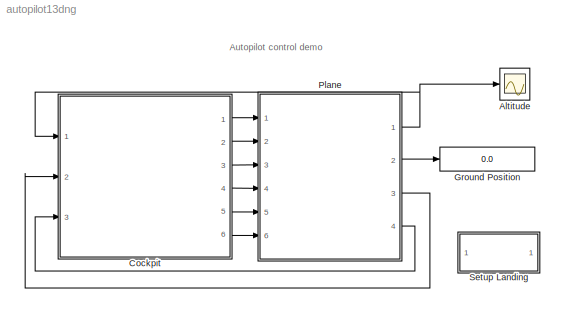
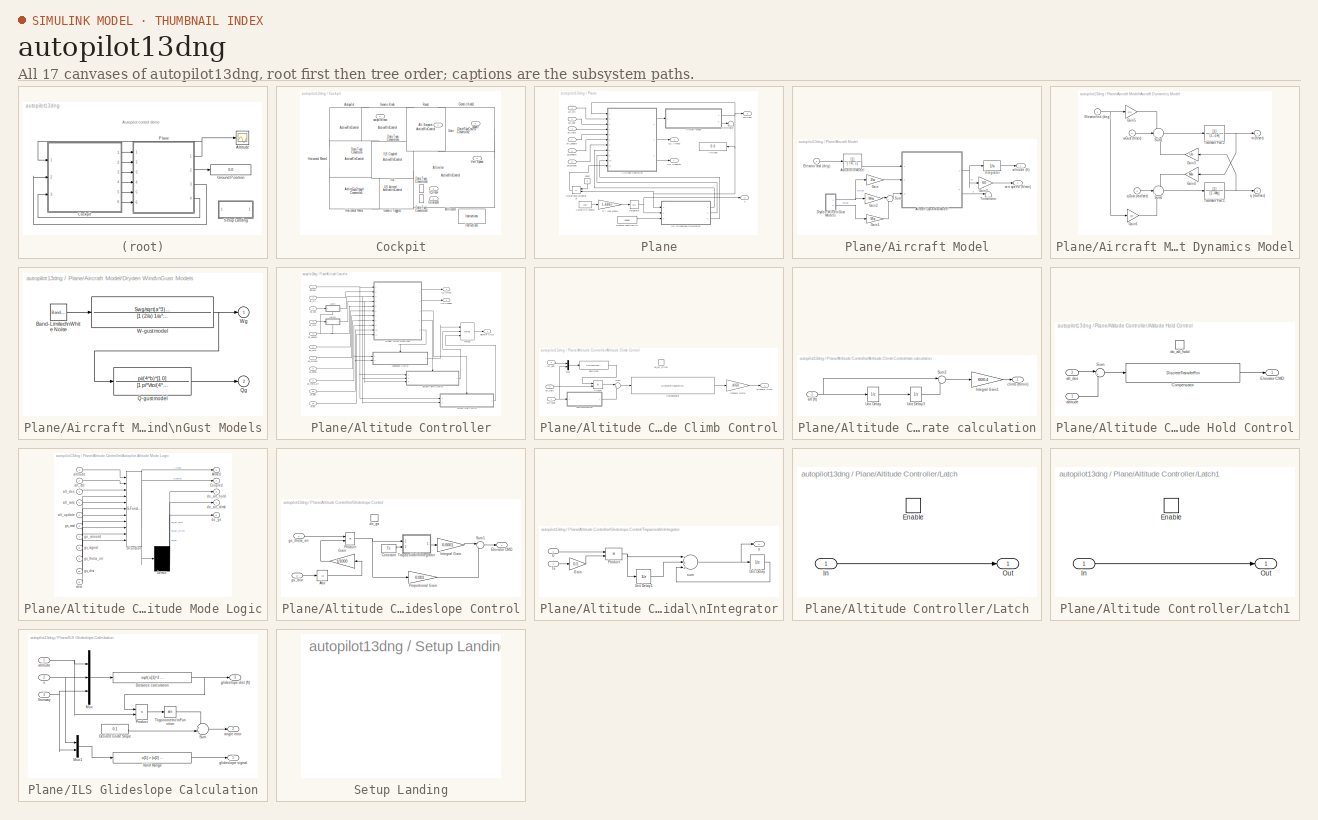
[diagram: thumbnail index - all 17 canvases of the model, root first then tree order]
MODEL autopilot13dng
KIND model
CONFIG AbsTol = auto
CONFIG FixedStep = .1
CONFIG MaxStep = auto
CONFIG MinStep = auto
CONFIG PreLoadFcn = load autopilot_data.mat;
CONFIG RelTol = 1e-3
CONFIG Solver = ode3
CONFIG SolverMode = SingleTasking
CONFIG StartTime = 0.0
CONFIG StopTime = 150
BLOCK [Scope] Altitude
  DataFormat = StructureWithTime
  NumInputPorts = 1
  Ports = [1]
  TickLabels = on
  TimeRange = 150
  YMax = 1500
  YMin = -100
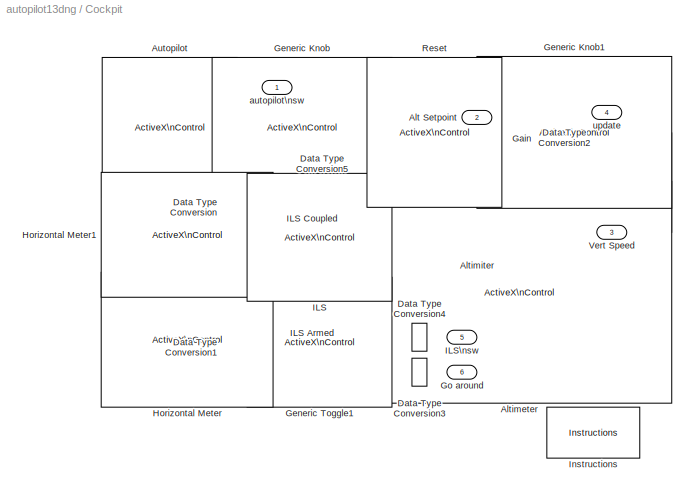
BLOCK [SubSystem] Cockpit
  Ports = [3, 6]
  TreatAsAtomicUnit = off
BLOCK [Outport] Cockpit/Alt Setpoint
  Port = 2
BLOCK [Reference] Cockpit/Altimeter  REF=dnglibv1/ActiveX\nControl
  Ports = [1]
  SourceBlock = dnglibv1/ActiveX\nControl
  SourceType = ActiveX Block
  border = on
  connect = input
  dialOut = 0
  inblock = on
  init = hActx.displaymode=2;hActx.altthousandstyle=1;
  input = altitude
  progid = air.airctrl.1
  updateParam = 0
BLOCK [Inport] Cockpit/Altimiter
BLOCK [Reference] Cockpit/Autopilot  REF=dnglibv1/ActiveX\nControl
  Ports = [0, 1]
  SourceBlock = dnglibv1/ActiveX\nControl
  SourceType = ActiveX Block
  border = on
  connect = output
  dialOut = 1
  dialOutEvent = Click
  inblock = on
  init = hActx.configuration='Toggle Switch\\Bitmap Toggles\\OnOff Switch';
  output = Value
  progid = mwtoggle.togglectrl.1
  updateParam = 0
BLOCK [DataTypeConversion] Cockpit/Data Type Conversion
BLOCK [DataTypeConversion] Cockpit/Data Type Conversion1
BLOCK [DataTypeConversion] Cockpit/Data Type Conversion2
  DataType = boolean
BLOCK [DataTypeConversion] Cockpit/Data Type Conversion3
  DataType = boolean
BLOCK [DataTypeConversion] Cockpit/Data Type Conversion4
  DataType = boolean
BLOCK [DataTypeConversion] Cockpit/Data Type Conversion5
  DataType = boolean
BLOCK [Gain] Cockpit/Gain
  Gain = -1
BLOCK [Reference] Cockpit/Generic Knob  REF=dnglibv1/ActiveX\nControl
  Ports = [0, 1]
  SourceBlock = dnglibv1/ActiveX\nControl
  SourceType = ActiveX Block
  border = on
  connect = output
  dialOut = 12000
  dialOutEvent = Turn Click
  inblock = on
  init = hActx.MouseControl=2;
  output = KnobValue
  progid = mwknob.knobctrl.1
  updateParam = 0
BLOCK [Reference] Cockpit/Generic Knob1  REF=dnglibv1/ActiveX\nControl
  Ports = [0, 1]
  SourceBlock = dnglibv1/ActiveX\nControl
  SourceType = ActiveX Block
  border = on
  connect = output
  dialOut = 750
  dialOutEvent = Turn Click
  inblock = on
  init = hActx.MouseControl=2;
  output = KnobValue
  progid = mwknob.knobctrl.1
  updateParam = 0
BLOCK [Reference] Cockpit/Generic Toggle1  REF=dnglibv1/ActiveX\nControl
  Ports = [0, 1]
  SourceBlock = dnglibv1/ActiveX\nControl
  SourceType = ActiveX Block
  border = on
  connect = output
  dialOut = 0
  dialOutEvent = Click
  inblock = on
  output = Value
  progid = mwtoggle.togglectrl.1
  updateParam = 0
BLOCK [Outport] Cockpit/Go around
  Port = 6
BLOCK [Reference] Cockpit/Horizontal Meter  REF=dnglibv1/ActiveX\nControl
  Ports = [1]
  SourceBlock = dnglibv1/ActiveX\nControl
  SourceType = ActiveX Block
  border = on
  connect = input
  dialOut = 0
  inblock = on
  init = hActx.configuration='LED<path> Horizontal Bitmaps';hActx.Mode=0;hActx.value=0;hActx.Mode=0;hActx.MouseControl=0;
  input = Value
  progid = MWLED.ledctrl.1
  updateParam = 0
BLOCK [Reference] Cockpit/Horizontal Meter1  REF=dnglibv1/ActiveX\nControl
  Ports = [1]
  SourceBlock = dnglibv1/ActiveX\nControl
  SourceType = ActiveX Block
  border = on
  connect = input
  dialOut = 0
  inblock = on
  init = hActx.configuration='LED<path> Horizontal Bitmaps';hActx.Mode=0;hActx.value=0;hActx.Mode=0;hActx.MouseControl=0;
  input = Value
  progid = MWLED.ledctrl.1
  updateParam = 0
BLOCK [Reference] Cockpit/ILS  REF=dnglibv1/ActiveX\nControl
  Ports = [0, 1]
  SourceBlock = dnglibv1/ActiveX\nControl
  SourceType = ActiveX Block
  border = on
  connect = output
  dialOut = 1
  dialOutEvent = Click
  inblock = on
  init = hActx.configuration='Toggle Switch\\Bitmap Toggles\\OnOff Switch';
  output = Value
  progid = mwtoggle.togglectrl.1
  updateParam = 0
BLOCK [Inport] Cockpit/ILS Armed
  Port = 2
BLOCK [Inport] Cockpit/ILS Coupled
  Port = 3
BLOCK [Outport] Cockpit/ILS\nsw
  Port = 5
BLOCK [Reference] Cockpit/Instructions  REF=autopilot_plane/Instructions  (lib defined in mdl_b56bc6afc28f)
  Ports = []
  SourceBlock = autopilot_plane/Instructions
BLOCK [Reference] Cockpit/Reset  REF=dnglibv1/ActiveX\nControl
  Ports = [0, 1]
  SourceBlock = dnglibv1/ActiveX\nControl
  SourceType = ActiveX Block
  border = on
  connect = output
  dialOut = 0
  dialOutEvent = Click
  inblock = on
  output = Value
  progid = mwtoggle.togglectrl.1
  updateParam = 0
BLOCK [Outport] Cockpit/Vert Speed
  Port = 3
BLOCK [Outport] Cockpit/autopilot\nsw
BLOCK [Outport] Cockpit/update
  Port = 4
BLOCK [Display] Ground Position
  Decimation = 1
  Ports = [1]
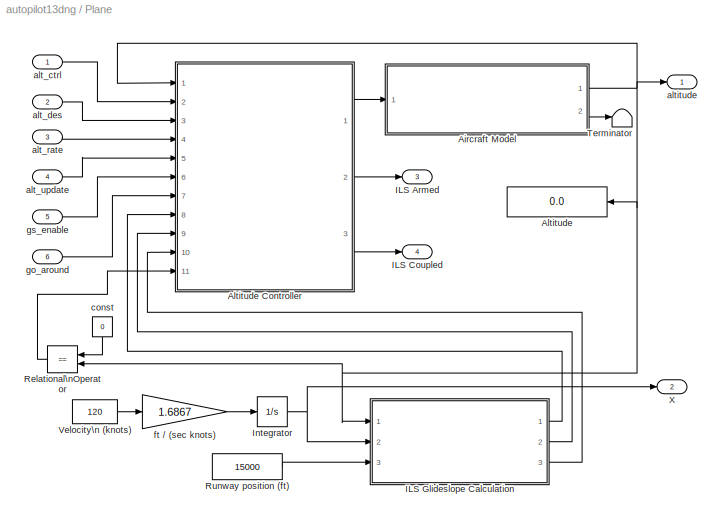
BLOCK [SubSystem] Plane
  AncestorBlock = autopilot_plane/Plane
  Ports = [6, 4]
  TreatAsAtomicUnit = off
BLOCK [SubSystem] Plane/Aircraft Model
  Ports = [1, 2]
  TreatAsAtomicUnit = off
BLOCK [TransferFcn] Plane/Aircraft Model/Actuator\nModel
  Denominator = [ Ta, 1]
BLOCK [SubSystem] Plane/Aircraft Model/Aircraft Dynamics Model
  Ports = [3, 2]
  TreatAsAtomicUnit = off
BLOCK [Inport] Plane/Aircraft Model/Aircraft Dynamics Model/Elevator\nd (deg)
BLOCK [Gain] Plane/Aircraft Model/Aircraft Dynamics Model/Gain3
  Gain = Uo
BLOCK [Gain] Plane/Aircraft Model/Aircraft Dynamics Model/Gain4
  Gain = Mw
BLOCK [Gain] Plane/Aircraft Model/Aircraft Dynamics Model/Gain5
  Gain = Zd
BLOCK [Gain] Plane/Aircraft Model/Aircraft Dynamics Model/Gain6
  Gain = Md
BLOCK [Sum] Plane/Aircraft Model/Aircraft Dynamics Model/Sum1
  IconShape = round
  Inputs = +-+
  Ports = [3, 1]
BLOCK [Sum] Plane/Aircraft Model/Aircraft Dynamics Model/Sum2
  IconShape = round
  Inputs = +-+
  Ports = [3, 1]
BLOCK [TransferFcn] Plane/Aircraft Model/Aircraft Dynamics Model/Transfer Fcn.1
  Denominator = [1,-Mq]
BLOCK [TransferFcn] Plane/Aircraft Model/Aircraft Dynamics Model/Transfer Fcn.2
  Denominator = [1,-Zw]
BLOCK [Outport] Plane/Aircraft Model/Aircraft Dynamics Model/q (rad//sec)
  InitialOutput = 0
  Port = 2
BLOCK [Inport] Plane/Aircraft Model/Aircraft Dynamics Model/qGust (rad//sec)
  Port = 3
BLOCK [Outport] Plane/Aircraft Model/Aircraft Dynamics Model/w (ft//sec)
  InitialOutput = 0
BLOCK [Inport] Plane/Aircraft Model/Aircraft Dynamics Model/wGust (ft//sec)
  Port = 2
BLOCK [SubSystem] Plane/Aircraft Model/Dryden Wind\nGust Models
  Ports = [0, 2]
  TreatAsAtomicUnit = off
BLOCK [Reference] Plane/Aircraft Model/Dryden Wind\nGust Models/Band-Limited\nWhite Noise  REF=simulink/Sources/Band-Limited\nWhite Noise
  Cov = 1
  Ports = [0, 1]
  SourceBlock = simulink/Sources/Band-Limited\nWhite Noise
  SourceType = Continuous White Noise.
  Ts = 0.2
  VectorParams1D = on
  seed = [23341]
BLOCK [TransferFcn] Plane/Aircraft Model/Dryden Wind\nGust Models/Q-gust model
  Denominator = [1 pi*Vto/(4*b)]
  Numerator = pi/(4*b)*[1 0]
BLOCK [Outport] Plane/Aircraft Model/Dryden Wind\nGust Models/Qg
  InitialOutput = 0
  Port = 2
BLOCK [TransferFcn] Plane/Aircraft Model/Dryden Wind\nGust Models/W-gust model
  Denominator = [1 (2/a) 1/a^2]
  Numerator = Swg/sqrt(a^3)*[sqrt(3)*a,1]
BLOCK [Outport] Plane/Aircraft Model/Dryden Wind\nGust Models/Wg
  InitialOutput = 0
BLOCK [Inport] Plane/Aircraft Model/Elevator cmd (deg)
BLOCK [Gain] Plane/Aircraft Model/Gain
  Gain = Zw
BLOCK [Gain] Plane/Aircraft Model/Gain1
  Gain = Mq
BLOCK [Gain] Plane/Aircraft Model/Gain2
  Gain = Mw
BLOCK [Gain] Plane/Aircraft Model/Gain3
  Gain = 60
BLOCK [Integrator] Plane/Aircraft Model/Integrator
  InitialCondition = alt_ic
  LimitOutput = on
  LowerSaturationLimit = 0
  Ports = [1, 1]
BLOCK [Sum] Plane/Aircraft Model/Sum
  IconShape = round
  Inputs = |++
  Ports = [2, 1]
BLOCK [Terminator] Plane/Aircraft Model/Terminator
BLOCK [Outport] Plane/Aircraft Model/altitude (ft)
BLOCK [Outport] Plane/Aircraft Model/vert speed (ft//min)
  Port = 2
BLOCK [Display] Plane/Altitude
  Decimation = 1
  Ports = [1]
BLOCK [SubSystem] Plane/Altitude Controller
  Ports = [11, 3]
  TreatAsAtomicUnit = off
BLOCK [SubSystem] Plane/Altitude Controller/Altitude Climb Control
  Ports = [3, 1, 0, 1]
  TreatAsAtomicUnit = on
BLOCK [DiscreteTransferFcn] Plane/Altitude Controller/Altitude Climb Control/Compensator
  Denominator = [1 -0.4855  -0.4181 -0.08965  -0.006702]
  Numerator = [-0.003849   0.007402  -0.003561 -2.681e-006]
  SampleTime = -1
BLOCK [Outport] Plane/Altitude Controller/Altitude Climb Control/Elevator CMD
BLOCK [Gain] Plane/Altitude Controller/Altitude Climb Control/Integral Gain1
  Gain = .4/60
BLOCK [Mux] Plane/Altitude Controller/Altitude Climb Control/Mux
  DisplayOption = bar
  Inputs = 2
  Ports = [2, 1]
BLOCK [Product] Plane/Altitude Controller/Altitude Climb Control/Product
  Ports = [2, 1]
BLOCK [Sum] Plane/Altitude Controller/Altitude Climb Control/Sum
  IconShape = round
  Inputs = |+-
  Ports = [2, 1]
BLOCK [Inport] Plane/Altitude Controller/Altitude Climb Control/alt_des
  Port = 2
BLOCK [Inport] Plane/Altitude Controller/Altitude Climb Control/alt_rate
  Port = 3
BLOCK [Inport] Plane/Altitude Controller/Altitude Climb Control/altitude
BLOCK [TriggerPort] Plane/Altitude Controller/Altitude Climb Control/do_alt_climb
  Ports = []
  TriggerType = function-call
BLOCK [Fcn] Plane/Altitude Controller/Altitude Climb Control/gain sign
  Expr = 1-2*(u[2]>u[1])
BLOCK [SubSystem] Plane/Altitude Controller/Altitude Climb Control/rate calculation
  Ports = [1, 1]
  TreatAsAtomicUnit = off
BLOCK [Gain] Plane/Altitude Controller/Altitude Climb Control/rate calculation/Integral Gain1
  Gain = 60/0.4
BLOCK [Sum] Plane/Altitude Controller/Altitude Climb Control/rate calculation/Sum2
  IconShape = round
  Inputs = |+-
  Ports = [2, 1]
BLOCK [UnitDelay] Plane/Altitude Controller/Altitude Climb Control/rate calculation/Unit Delay
  SampleTime = -1
  X0 = 10000
BLOCK [UnitDelay] Plane/Altitude Controller/Altitude Climb Control/rate calculation/Unit Delay3
  SampleTime = -1
  X0 = 10000
BLOCK [Inport] Plane/Altitude Controller/Altitude Climb Control/rate calculation/alt (ft)
BLOCK [Outport] Plane/Altitude Controller/Altitude Climb Control/rate calculation/climb (ft//min)
BLOCK [SubSystem] Plane/Altitude Controller/Altitude Hold Control
  Ports = [2, 1, 0, 1]
  TreatAsAtomicUnit = on
BLOCK [DiscreteTransferFcn] Plane/Altitude Controller/Altitude Hold Control/Compensator
  Denominator = [1 1.713  0.7383]
  Numerator = [-0.007845  0.01559 -0.007756]
  SampleTime = -1
BLOCK [Outport] Plane/Altitude Controller/Altitude Hold Control/Elevator CMD
BLOCK [Sum] Plane/Altitude Controller/Altitude Hold Control/Sum
  IconShape = round
  Inputs = |+-
  Ports = [2, 1]
BLOCK [Inport] Plane/Altitude Controller/Altitude Hold Control/alt_des
  Port = 2
BLOCK [Inport] Plane/Altitude Controller/Altitude Hold Control/altitude
BLOCK [TriggerPort] Plane/Altitude Controller/Altitude Hold Control/do_alt_hold
  Ports = []
  TriggerType = function-call
BLOCK [SubSystem] Plane/Altitude Controller/Autopilot Altitude Mode Logic
  MaskDisplay = plot(sf('Private','sfblk','xIcon'),sf('Private','sfblk','yIcon'));text(0.5,0,sf('Private', 'sfblk', 'tIcon'),'HorizontalAl','Center','VerticalAl','Bottom');
  MaskIconFrame = off
  MaskIconOpaque = off
  MaskIconRotate = none
  MaskIconUnits = autoscale
  MaskSelfModifiable = on
  MaskType = Stateflow
  Ports = [11, 5]
  TreatAsAtomicUnit = off
BLOCK [Demux] Plane/Altitude Controller/Autopilot Altitude Mode Logic/ Demux 
  Outputs = 3
  Ports = [1, 3]
BLOCK [S-Function] Plane/Altitude Controller/Autopilot Altitude Mode Logic/ SFunction 
  FunctionName = sf_sfun
  PortCounts = [11 3]
  Ports = [11, 3]
  Tag = Stateflow S-Function autopilot13dng 1
BLOCK [Outport] Plane/Altitude Controller/Autopilot Altitude Mode Logic/Armed
BLOCK [Outport] Plane/Altitude Controller/Autopilot Altitude Mode Logic/Coupled
  Port = 2
BLOCK [Inport] Plane/Altitude Controller/Autopilot Altitude Mode Logic/alt_ctrl
  Port = 2
  PortDimensions = 1
BLOCK [Inport] Plane/Altitude Controller/Autopilot Altitude Mode Logic/alt_des
  Port = 3
  PortDimensions = 1
BLOCK [Inport] Plane/Altitude Controller/Autopilot Altitude Mode Logic/alt_rate
  Port = 4
  PortDimensions = 1
BLOCK [Inport] Plane/Altitude Controller/Autopilot Altitude Mode Logic/alt_update
  Port = 5
  PortDimensions = 1
BLOCK [Inport] Plane/Altitude Controller/Autopilot Altitude Mode Logic/altitude
  PortDimensions = 1
BLOCK [Outport] Plane/Altitude Controller/Autopilot Altitude Mode Logic/do_alt_climb
  Port = 4
BLOCK [Outport] Plane/Altitude Controller/Autopilot Altitude Mode Logic/do_alt_hold
  Port = 3
BLOCK [Outport] Plane/Altitude Controller/Autopilot Altitude Mode Logic/do_gs
  Port = 5
BLOCK [Inport] Plane/Altitude Controller/Autopilot Altitude Mode Logic/go_around
  Port = 7
  PortDimensions = 1
BLOCK [Inport] Plane/Altitude Controller/Autopilot Altitude Mode Logic/gs_cmd
  Port = 6
  PortDimensions = 1
BLOCK [Inport] Plane/Altitude Controller/Autopilot Altitude Mode Logic/gs_dist
  Port = 10
  PortDimensions = 1
BLOCK [Inport] Plane/Altitude Controller/Autopilot Altitude Mode Logic/gs_signal
  Port = 8
  PortDimensions = 1
BLOCK [Inport] Plane/Altitude Controller/Autopilot Altitude Mode Logic/gs_theta_err
  Port = 9
  PortDimensions = 1
BLOCK [Inport] Plane/Altitude Controller/Autopilot Altitude Mode Logic/wow
  Port = 11
  PortDimensions = 1
BLOCK [Outport] Plane/Altitude Controller/Elevator CMD
BLOCK [SubSystem] Plane/Altitude Controller/Glideslope Control
  Ports = [2, 1, 0, 1]
  TreatAsAtomicUnit = on
BLOCK [Abs] Plane/Altitude Controller/Glideslope Control/Abs
BLOCK [Constant] Plane/Altitude Controller/Glideslope Control/Constant
  Value = Ts
BLOCK [Outport] Plane/Altitude Controller/Glideslope Control/Elevator CMD
BLOCK [Gain] Plane/Altitude Controller/Glideslope Control/Gain
  Gain = 1/1000
BLOCK [Gain] Plane/Altitude Controller/Glideslope Control/Integral Gain
  Gain = 0.0001
BLOCK [Product] Plane/Altitude Controller/Glideslope Control/Product
  Ports = [2, 1]
BLOCK [Gain] Plane/Altitude Controller/Glideslope Control/Proportional Gain
  Gain = 0.001
BLOCK [Sum] Plane/Altitude Controller/Glideslope Control/Sum1
  IconShape = round
  Inputs = |++
  Ports = [2, 1]
BLOCK [SubSystem] Plane/Altitude Controller/Glideslope Control/Trapazoidal\nIntegrator
  MaskDescription = Discrete-time integrator with no dependence on absolute time.  U is the input value and Ts is the discrete sample time.
  MaskDisplay = disp(sprintf('T(z+1)\\n-----\\n2(z-1)'))\nport_label('input',1,'U');\nport_label('input',2,'Ts');
  MaskIconFrame = on
  MaskIconOpaque = on
  MaskIconRotate = none
  MaskIconUnits = autoscale
  MaskType = No Time Trapazoid Integrator
  Ports = [2, 1]
  TreatAsAtomicUnit = off
BLOCK [Gain] Plane/Altitude Controller/Glideslope Control/Trapazoidal\nIntegrator/Gain
  Gain = 0.5
  SaturateOnIntegerOverflow = off
BLOCK [Product] Plane/Altitude Controller/Glideslope Control/Trapazoidal\nIntegrator/Product
  Ports = [2, 1]
  SaturateOnIntegerOverflow = off
BLOCK [Inport] Plane/Altitude Controller/Glideslope Control/Trapazoidal\nIntegrator/Ts
  Port = 2
BLOCK [Inport] Plane/Altitude Controller/Glideslope Control/Trapazoidal\nIntegrator/U
BLOCK [UnitDelay] Plane/Altitude Controller/Glideslope Control/Trapazoidal\nIntegrator/Unit Delay
  SampleTime = -1
BLOCK [UnitDelay] Plane/Altitude Controller/Glideslope Control/Trapazoidal\nIntegrator/Unit Delay1
  SampleTime = -1
BLOCK [Sum] Plane/Altitude Controller/Glideslope Control/Trapazoidal\nIntegrator/sum
  Inputs = +++
  Ports = [3, 1]
  SaturateOnIntegerOverflow = off
BLOCK [Outport] Plane/Altitude Controller/Glideslope Control/Trapazoidal\nIntegrator/y
BLOCK [TriggerPort] Plane/Altitude Controller/Glideslope Control/do_gs
  Ports = []
  TriggerType = function-call
BLOCK [Inport] Plane/Altitude Controller/Glideslope Control/gs_dist
  Port = 2
BLOCK [Inport] Plane/Altitude Controller/Glideslope Control/gs_theta_err
BLOCK [Outport] Plane/Altitude Controller/ILS Armed
  Port = 2
BLOCK [Outport] Plane/Altitude Controller/ILS Coupled
  Port = 3
BLOCK [SubSystem] Plane/Altitude Controller/Latch
  Ports = [1, 1, 1]
  RTWSystemCode = Inline
  TreatAsAtomicUnit = on
BLOCK [EnablePort] Plane/Altitude Controller/Latch/Enable
  Ports = []
BLOCK [Inport] Plane/Altitude Controller/Latch/In
BLOCK [Outport] Plane/Altitude Controller/Latch/Out
  InitialOutput = alt_ic
BLOCK [SubSystem] Plane/Altitude Controller/Latch1
  Ports = [1, 1, 1]
  RTWSystemCode = Inline
  TreatAsAtomicUnit = on
BLOCK [EnablePort] Plane/Altitude Controller/Latch1/Enable
  Ports = []
BLOCK [Inport] Plane/Altitude Controller/Latch1/In
BLOCK [Outport] Plane/Altitude Controller/Latch1/Out
  InitialOutput = 10000
BLOCK [Merge] Plane/Altitude Controller/Merge
  Inputs = 3
  Ports = [3, 1]
BLOCK [Inport] Plane/Altitude Controller/alt_ctrl
  Port = 2
  SampleTime = Ts
BLOCK [Inport] Plane/Altitude Controller/alt_des
  Port = 3
  SampleTime = Ts
BLOCK [Inport] Plane/Altitude Controller/alt_rate
  Port = 4
  SampleTime = Ts
BLOCK [Inport] Plane/Altitude Controller/alt_update
  Port = 5
  SampleTime = Ts
BLOCK [Inport] Plane/Altitude Controller/altitude
  SampleTime = Ts
BLOCK [Inport] Plane/Altitude Controller/go_around
  Port = 7
  SampleTime = Ts
BLOCK [Inport] Plane/Altitude Controller/gs_cmd
  Port = 6
  SampleTime = Ts
BLOCK [Inport] Plane/Altitude Controller/gs_dist
  Port = 10
  SampleTime = Ts
BLOCK [Inport] Plane/Altitude Controller/gs_signal
  Port = 8
  SampleTime = Ts
BLOCK [Inport] Plane/Altitude Controller/gs_theta_err
  Port = 9
  SampleTime = Ts
BLOCK [Inport] Plane/Altitude Controller/wow
  Port = 11
  SampleTime = Ts
BLOCK [Outport] Plane/ILS Armed
  Port = 3
BLOCK [Outport] Plane/ILS Coupled
  Port = 4
BLOCK [SubSystem] Plane/ILS Glideslope Calculation
  Ports = [3, 3]
  TreatAsAtomicUnit = off
BLOCK [Constant] Plane/ILS Glideslope Calculation/Desired Glide Slope
  Value = 0.1
BLOCK [Fcn] Plane/ILS Glideslope Calculation/Distance calculation
  Expr = sqrt( u[1]^2 + (u[2] - u[3])^2 )
BLOCK [Mux] Plane/ILS Glideslope Calculation/Mux
  DisplayOption = bar
  Inputs = 3
  Ports = [3, 1]
BLOCK [Mux] Plane/ILS Glideslope Calculation/Mux1
  DisplayOption = bar
  Inputs = 2
  Ports = [2, 1]
BLOCK [Product] Plane/ILS Glideslope Calculation/Product
  Inputs = /*
  Ports = [2, 1]
BLOCK [Sum] Plane/ILS Glideslope Calculation/Sum
  IconShape = round
  Inputs = +-|
  Ports = [2, 1]
BLOCK [Trigonometry] Plane/ILS Glideslope Calculation/Trigonometric\nFunction
  Operator = asin
  Ports = [1, 1]
BLOCK [Fcn] Plane/ILS Glideslope Calculation/Valid Range
  Expr = u[1] > (u[2] - 10000)
BLOCK [Inport] Plane/ILS Glideslope Calculation/Xrunway
  Port = 3
BLOCK [Inport] Plane/ILS Glideslope Calculation/altitude
BLOCK [Outport] Plane/ILS Glideslope Calculation/angle error
  Port = 2
BLOCK [Outport] Plane/ILS Glideslope Calculation/glideslope dist (ft)
  Port = 3
BLOCK [Outport] Plane/ILS Glideslope Calculation/glideslope signal
BLOCK [Inport] Plane/ILS Glideslope Calculation/x
  Port = 2
BLOCK [Integrator] Plane/Integrator
  Ports = [1, 1]
BLOCK [RelationalOperator] Plane/Relational\nOperator
  Operator = ==
BLOCK [Constant] Plane/Runway position (ft)
  Value = 15000
BLOCK [Terminator] Plane/Terminator
BLOCK [Constant] Plane/Velocity\n (knots)
  Value = 120
BLOCK [Outport] Plane/X
  Port = 2
BLOCK [Inport] Plane/alt_ctrl
BLOCK [Inport] Plane/alt_des
  Port = 2
BLOCK [Inport] Plane/alt_rate
  Port = 3
BLOCK [Inport] Plane/alt_update
  Port = 4
BLOCK [Outport] Plane/altitude
BLOCK [Constant] Plane/const
  Value = 0
BLOCK [Gain] Plane/ft // (sec knots)
  Gain = 1.6867
BLOCK [Inport] Plane/go_around
  Port = 6
BLOCK [Inport] Plane/gs_enable
  Port = 5
BLOCK [SubSystem] Setup Landing
  MaskDisplay = disp('Setup\\nLanding')
  MaskIconFrame = on
  MaskIconOpaque = on
  MaskIconRotate = none
  MaskIconUnits = autoscale
  OpenFcn = alt_ic = 1200
  Ports = []
  TreatAsAtomicUnit = off
ANNOTATION (root): Autopilot control demo
LINE Cockpit/Altimiter:1 -> Cockpit/Altimeter:1
LINE Cockpit/Autopilot:1 -> Cockpit/Data Type Conversion5:1
LINE Cockpit/Data Type Conversion1:1 -> Cockpit/Horizontal Meter1:1
LINE Cockpit/Data Type Conversion2:1 -> Cockpit/update:1
LINE Cockpit/Data Type Conversion3:1 -> Cockpit/Go around:1
LINE Cockpit/Data Type Conversion4:1 -> Cockpit/ILS\nsw:1
LINE Cockpit/Data Type Conversion5:1 -> Cockpit/autopilot\nsw:1
LINE Cockpit/Data Type Conversion:1 -> Cockpit/Horizontal Meter:1
LINE Cockpit/Gain:1 -> Cockpit/Data Type Conversion2:1
LINE Cockpit/Generic Knob1:1 -> Cockpit/Vert Speed:1
LINE Cockpit/Generic Knob:1 -> Cockpit/Alt Setpoint:1
LINE Cockpit/Generic Toggle1:1 -> Cockpit/Data Type Conversion3:1
LINE Cockpit/ILS Armed:1 -> Cockpit/Data Type Conversion1:1
LINE Cockpit/ILS Coupled:1 -> Cockpit/Data Type Conversion:1
LINE Cockpit/ILS:1 -> Cockpit/Data Type Conversion4:1
LINE Cockpit/Reset:1 -> Cockpit/Gain:1
LINE Cockpit:1 -> Plane:1
LINE Cockpit:2 -> Plane:2
LINE Cockpit:3 -> Plane:3
LINE Cockpit:4 -> Plane:4
LINE Cockpit:5 -> Plane:5
LINE Cockpit:6 -> Plane:6
LINE Plane/Aircraft Model/Actuator\nModel:1 -> Plane/Aircraft Model/Aircraft Dynamics Model:1
NET Plane/Aircraft Model/Aircraft Dynamics Model/Elevator\nd (deg):1 -> Plane/Aircraft Model/Aircraft Dynamics Model/Gain5:1, Plane/Aircraft Model/Aircraft Dynamics Model/Gain6:1
LINE Plane/Aircraft Model/Aircraft Dynamics Model/Gain3:1 -> Plane/Aircraft Model/Aircraft Dynamics Model/Sum1:3
LINE Plane/Aircraft Model/Aircraft Dynamics Model/Gain4:1 -> Plane/Aircraft Model/Aircraft Dynamics Model/Sum2:1
LINE Plane/Aircraft Model/Aircraft Dynamics Model/Gain5:1 -> Plane/Aircraft Model/Aircraft Dynamics Model/Sum1:1
LINE Plane/Aircraft Model/Aircraft Dynamics Model/Gain6:1 -> Plane/Aircraft Model/Aircraft Dynamics Model/Sum2:3
LINE Plane/Aircraft Model/Aircraft Dynamics Model/Sum1:1 -> Plane/Aircraft Model/Aircraft Dynamics Model/Transfer Fcn.2:1
LINE Plane/Aircraft Model/Aircraft Dynamics Model/Sum2:1 -> Plane/Aircraft Model/Aircraft Dynamics Model/Transfer Fcn.1:1
NET Plane/Aircraft Model/Aircraft Dynamics Model/Transfer Fcn.1:1 -> Plane/Aircraft Model/Aircraft Dynamics Model/Gain3:1, Plane/Aircraft Model/Aircraft Dynamics Model/q (rad//sec):1
NET Plane/Aircraft Model/Aircraft Dynamics Model/Transfer Fcn.2:1 -> Plane/Aircraft Model/Aircraft Dynamics Model/Gain4:1, Plane/Aircraft Model/Aircraft Dynamics Model/w (ft//sec):1
LINE Plane/Aircraft Model/Aircraft Dynamics Model/qGust (rad//sec):1 -> Plane/Aircraft Model/Aircraft Dynamics Model/Sum2:2
LINE Plane/Aircraft Model/Aircraft Dynamics Model/wGust (ft//sec):1 -> Plane/Aircraft Model/Aircraft Dynamics Model/Sum1:2
NET Plane/Aircraft Model/Aircraft Dynamics Model:1 -> Plane/Aircraft Model/Gain3:1, Plane/Aircraft Model/Integrator:1
LINE Plane/Aircraft Model/Aircraft Dynamics Model:2 -> Plane/Aircraft Model/Terminator:1
LINE Plane/Aircraft Model/Dryden Wind\nGust Models/Band-Limited\nWhite Noise:1 -> Plane/Aircraft Model/Dryden Wind\nGust Models/W-gust model:1
LINE Plane/Aircraft Model/Dryden Wind\nGust Models/Q-gust model:1 -> Plane/Aircraft Model/Dryden Wind\nGust Models/Qg:1
NET Plane/Aircraft Model/Dryden Wind\nGust Models/W-gust model:1 -> Plane/Aircraft Model/Dryden Wind\nGust Models/Q-gust model:1, Plane/Aircraft Model/Dryden Wind\nGust Models/Wg:1
NET Plane/Aircraft Model/Dryden Wind\nGust Models:1 -> Plane/Aircraft Model/Gain2:1, Plane/Aircraft Model/Gain:1
LINE Plane/Aircraft Model/Dryden Wind\nGust Models:2 -> Plane/Aircraft Model/Gain1:1
LINE Plane/Aircraft Model/Elevator cmd (deg):1 -> Plane/Aircraft Model/Actuator\nModel:1
LINE Plane/Aircraft Model/Gain1:1 -> Plane/Aircraft Model/Sum:2
LINE Plane/Aircraft Model/Gain2:1 -> Plane/Aircraft Model/Sum:1
LINE Plane/Aircraft Model/Gain3:1 -> Plane/Aircraft Model/vert speed (ft//min):1
LINE Plane/Aircraft Model/Gain:1 -> Plane/Aircraft Model/Aircraft Dynamics Model:2
LINE Plane/Aircraft Model/Integrator:1 -> Plane/Aircraft Model/altitude (ft):1
LINE Plane/Aircraft Model/Sum:1 -> Plane/Aircraft Model/Aircraft Dynamics Model:3
NET Plane/Aircraft Model:1 -> Plane/Altitude Controller:1, Plane/Altitude:1, Plane/ILS Glideslope Calculation:1, Plane/Relational\nOperator:2, Plane/altitude:1
LINE Plane/Aircraft Model:2 -> Plane/Terminator:1
LINE Plane/Altitude Controller/Altitude Climb Control/Compensator:1 -> Plane/Altitude Controller/Altitude Climb Control/Integral Gain1:1
LINE Plane/Altitude Controller/Altitude Climb Control/Integral Gain1:1 -> Plane/Altitude Controller/Altitude Climb Control/Elevator CMD:1
LINE Plane/Altitude Controller/Altitude Climb Control/Mux:1 -> Plane/Altitude Controller/Altitude Climb Control/gain sign:1
LINE Plane/Altitude Controller/Altitude Climb Control/Product:1 -> Plane/Altitude Controller/Altitude Climb Control/Sum:1
LINE Plane/Altitude Controller/Altitude Climb Control/Sum:1 -> Plane/Altitude Controller/Altitude Climb Control/Compensator:1
LINE Plane/Altitude Controller/Altitude Climb Control/alt_des:1 -> Plane/Altitude Controller/Altitude Climb Control/Mux:1
LINE Plane/Altitude Controller/Altitude Climb Control/alt_rate:1 -> Plane/Altitude Controller/Altitude Climb Control/Product:2
NET Plane/Altitude Controller/Altitude Climb Control/altitude:1 -> Plane/Altitude Controller/Altitude Climb Control/Mux:2, Plane/Altitude Controller/Altitude Climb Control/rate calculation:1
LINE Plane/Altitude Controller/Altitude Climb Control/gain sign:1 -> Plane/Altitude Controller/Altitude Climb Control/Product:1
LINE Plane/Altitude Controller/Altitude Climb Control/rate calculation/Integral Gain1:1 -> Plane/Altitude Controller/Altitude Climb Control/rate calculation/climb (ft//min):1
LINE Plane/Altitude Controller/Altitude Climb Control/rate calculation/Sum2:1 -> Plane/Altitude Controller/Altitude Climb Control/rate calculation/Integral Gain1:1
LINE Plane/Altitude Controller/Altitude Climb Control/rate calculation/Unit Delay3:1 -> Plane/Altitude Controller/Altitude Climb Control/rate calculation/Sum2:2
LINE Plane/Altitude Controller/Altitude Climb Control/rate calculation/Unit Delay:1 -> Plane/Altitude Controller/Altitude Climb Control/rate calculation/Unit Delay3:1
NET Plane/Altitude Controller/Altitude Climb Control/rate calculation/alt (ft):1 -> Plane/Altitude Controller/Altitude Climb Control/rate calculation/Sum2:1, Plane/Altitude Controller/Altitude Climb Control/rate calculation/Unit Delay:1
LINE Plane/Altitude Controller/Altitude Climb Control/rate calculation:1 -> Plane/Altitude Controller/Altitude Climb Control/Sum:2
LINE Plane/Altitude Controller/Altitude Climb Control:1 -> Plane/Altitude Controller/Merge:2
LINE Plane/Altitude Controller/Altitude Hold Control/Compensator:1 -> Plane/Altitude Controller/Altitude Hold Control/Elevator CMD:1
LINE Plane/Altitude Controller/Altitude Hold Control/Sum:1 -> Plane/Altitude Controller/Altitude Hold Control/Compensator:1
LINE Plane/Altitude Controller/Altitude Hold Control/alt_des:1 -> Plane/Altitude Controller/Altitude Hold Control/Sum:1
LINE Plane/Altitude Controller/Altitude Hold Control/altitude:1 -> Plane/Altitude Controller/Altitude Hold Control/Sum:2
LINE Plane/Altitude Controller/Altitude Hold Control:1 -> Plane/Altitude Controller/Merge:3
LINE Plane/Altitude Controller/Autopilot Altitude Mode Logic/ Demux :1 -> Plane/Altitude Controller/Autopilot Altitude Mode Logic/do_alt_hold:1
LINE Plane/Altitude Controller/Autopilot Altitude Mode Logic/ Demux :2 -> Plane/Altitude Controller/Autopilot Altitude Mode Logic/do_alt_climb:1
LINE Plane/Altitude Controller/Autopilot Altitude Mode Logic/ Demux :3 -> Plane/Altitude Controller/Autopilot Altitude Mode Logic/do_gs:1
LINE Plane/Altitude Controller/Autopilot Altitude Mode Logic/ SFunction :1 -> Plane/Altitude Controller/Autopilot Altitude Mode Logic/ Demux :1
LINE Plane/Altitude Controller/Autopilot Altitude Mode Logic/ SFunction :2 -> Plane/Altitude Controller/Autopilot Altitude Mode Logic/Armed:1
LINE Plane/Altitude Controller/Autopilot Altitude Mode Logic/ SFunction :3 -> Plane/Altitude Controller/Autopilot Altitude Mode Logic/Coupled:1
LINE Plane/Altitude Controller/Autopilot Altitude Mode Logic/alt_ctrl:1 -> Plane/Altitude Controller/Autopilot Altitude Mode Logic/ SFunction :2
LINE Plane/Altitude Controller/Autopilot Altitude Mode Logic/alt_des:1 -> Plane/Altitude Controller/Autopilot Altitude Mode Logic/ SFunction :3
LINE Plane/Altitude Controller/Autopilot Altitude Mode Logic/alt_rate:1 -> Plane/Altitude Controller/Autopilot Altitude Mode Logic/ SFunction :4
LINE Plane/Altitude Controller/Autopilot Altitude Mode Logic/alt_update:1 -> Plane/Altitude Controller/Autopilot Altitude Mode Logic/ SFunction :5
LINE Plane/Altitude Controller/Autopilot Altitude Mode Logic/altitude:1 -> Plane/Altitude Controller/Autopilot Altitude Mode Logic/ SFunction :1
LINE Plane/Altitude Controller/Autopilot Altitude Mode Logic/go_around:1 -> Plane/Altitude Controller/Autopilot Altitude Mode Logic/ SFunction :7
LINE Plane/Altitude Controller/Autopilot Altitude Mode Logic/gs_cmd:1 -> Plane/Altitude Controller/Autopilot Altitude Mode Logic/ SFunction :6
LINE Plane/Altitude Controller/Autopilot Altitude Mode Logic/gs_dist:1 -> Plane/Altitude Controller/Autopilot Altitude Mode Logic/ SFunction :10
LINE Plane/Altitude Controller/Autopilot Altitude Mode Logic/gs_signal:1 -> Plane/Altitude Controller/Autopilot Altitude Mode Logic/ SFunction :8
LINE Plane/Altitude Controller/Autopilot Altitude Mode Logic/gs_theta_err:1 -> Plane/Altitude Controller/Autopilot Altitude Mode Logic/ SFunction :9
LINE Plane/Altitude Controller/Autopilot Altitude Mode Logic/wow:1 -> Plane/Altitude Controller/Autopilot Altitude Mode Logic/ SFunction :11
LINE Plane/Altitude Controller/Autopilot Altitude Mode Logic:1 -> Plane/Altitude Controller/ILS Armed:1
LINE Plane/Altitude Controller/Autopilot Altitude Mode Logic:2 -> Plane/Altitude Controller/ILS Coupled:1
LINE Plane/Altitude Controller/Autopilot Altitude Mode Logic:3 -> Plane/Altitude Controller/Altitude Hold Control:trigger
LINE Plane/Altitude Controller/Autopilot Altitude Mode Logic:4 -> Plane/Altitude Controller/Altitude Climb Control:trigger
LINE Plane/Altitude Controller/Autopilot Altitude Mode Logic:5 -> Plane/Altitude Controller/Glideslope Control:trigger
LINE Plane/Altitude Controller/Glideslope Control/Abs:1 -> Plane/Altitude Controller/Glideslope Control/Gain:1
LINE Plane/Altitude Controller/Glideslope Control/Constant:1 -> Plane/Altitude Controller/Glideslope Control/Trapazoidal\nIntegrator:2
LINE Plane/Altitude Controller/Glideslope Control/Gain:1 -> Plane/Altitude Controller/Glideslope Control/Product:2
LINE Plane/Altitude Controller/Glideslope Control/Integral Gain:1 -> Plane/Altitude Controller/Glideslope Control/Sum1:1
NET Plane/Altitude Controller/Glideslope Control/Product:1 -> Plane/Altitude Controller/Glideslope Control/Proportional Gain:1, Plane/Altitude Controller/Glideslope Control/Trapazoidal\nIntegrator:1
LINE Plane/Altitude Controller/Glideslope Control/Proportional Gain:1 -> Plane/Altitude Controller/Glideslope Control/Sum1:2
LINE Plane/Altitude Controller/Glideslope Control/Sum1:1 -> Plane/Altitude Controller/Glideslope Control/Elevator CMD:1
LINE Plane/Altitude Controller/Glideslope Control/Trapazoidal\nIntegrator/Gain:1 -> Plane/Altitude Controller/Glideslope Control/Trapazoidal\nIntegrator/Product:2
NET Plane/Altitude Controller/Glideslope Control/Trapazoidal\nIntegrator/Product:1 -> Plane/Altitude Controller/Glideslope Control/Trapazoidal\nIntegrator/Unit Delay1:1, Plane/Altitude Controller/Glideslope Control/Trapazoidal\nIntegrator/sum:1
LINE Plane/Altitude Controller/Glideslope Control/Trapazoidal\nIntegrator/Ts:1 -> Plane/Altitude Controller/Glideslope Control/Trapazoidal\nIntegrator/Gain:1
LINE Plane/Altitude Controller/Glideslope Control/Trapazoidal\nIntegrator/U:1 -> Plane/Altitude Controller/Glideslope Control/Trapazoidal\nIntegrator/Product:1
LINE Plane/Altitude Controller/Glideslope Control/Trapazoidal\nIntegrator/Unit Delay1:1 -> Plane/Altitude Controller/Glideslope Control/Trapazoidal\nIntegrator/sum:2
LINE Plane/Altitude Controller/Glideslope Control/Trapazoidal\nIntegrator/Unit Delay:1 -> Plane/Altitude Controller/Glideslope Control/Trapazoidal\nIntegrator/sum:3
NET Plane/Altitude Controller/Glideslope Control/Trapazoidal\nIntegrator/sum:1 -> Plane/Altitude Controller/Glideslope Control/Trapazoidal\nIntegrator/Unit Delay:1, Plane/Altitude Controller/Glideslope Control/Trapazoidal\nIntegrator/y:1
LINE Plane/Altitude Controller/Glideslope Control/Trapazoidal\nIntegrator:1 -> Plane/Altitude Controller/Glideslope Control/Integral Gain:1
LINE Plane/Altitude Controller/Glideslope Control/gs_dist:1 -> Plane/Altitude Controller/Glideslope Control/Abs:1
LINE Plane/Altitude Controller/Glideslope Control/gs_theta_err:1 -> Plane/Altitude Controller/Glideslope Control/Product:1
LINE Plane/Altitude Controller/Glideslope Control:1 -> Plane/Altitude Controller/Merge:1
LINE Plane/Altitude Controller/Latch/In:1 -> Plane/Altitude Controller/Latch/Out:1
LINE Plane/Altitude Controller/Latch1/In:1 -> Plane/Altitude Controller/Latch1/Out:1
NET Plane/Altitude Controller/Latch1:1 -> Plane/Altitude Controller/Altitude Climb Control:3, Plane/Altitude Controller/Autopilot Altitude Mode Logic:4
NET Plane/Altitude Controller/Latch:1 -> Plane/Altitude Controller/Altitude Climb Control:2, Plane/Altitude Controller/Altitude Hold Control:2, Plane/Altitude Controller/Autopilot Altitude Mode Logic:3
LINE Plane/Altitude Controller/Merge:1 -> Plane/Altitude Controller/Elevator CMD:1
LINE Plane/Altitude Controller/alt_ctrl:1 -> Plane/Altitude Controller/Autopilot Altitude Mode Logic:2
LINE Plane/Altitude Controller/alt_des:1 -> Plane/Altitude Controller/Latch:1
LINE Plane/Altitude Controller/alt_rate:1 -> Plane/Altitude Controller/Latch1:1
NET Plane/Altitude Controller/alt_update:1 -> Plane/Altitude Controller/Autopilot Altitude Mode Logic:5, Plane/Altitude Controller/Latch1:enable, Plane/Altitude Controller/Latch:enable
NET Plane/Altitude Controller/altitude:1 -> Plane/Altitude Controller/Altitude Climb Control:1, Plane/Altitude Controller/Altitude Hold Control:1, Plane/Altitude Controller/Autopilot Altitude Mode Logic:1
LINE Plane/Altitude Controller/go_around:1 -> Plane/Altitude Controller/Autopilot Altitude Mode Logic:7
LINE Plane/Altitude Controller/gs_cmd:1 -> Plane/Altitude Controller/Autopilot Altitude Mode Logic:6
NET Plane/Altitude Controller/gs_dist:1 -> Plane/Altitude Controller/Autopilot Altitude Mode Logic:10, Plane/Altitude Controller/Glideslope Control:2
LINE Plane/Altitude Controller/gs_signal:1 -> Plane/Altitude Controller/Autopilot Altitude Mode Logic:8
NET Plane/Altitude Controller/gs_theta_err:1 -> Plane/Altitude Controller/Autopilot Altitude Mode Logic:9, Plane/Altitude Controller/Glideslope Control:1
LINE Plane/Altitude Controller/wow:1 -> Plane/Altitude Controller/Autopilot Altitude Mode Logic:11
LINE Plane/Altitude Controller:1 -> Plane/Aircraft Model:1
LINE Plane/Altitude Controller:2 -> Plane/ILS Armed:1
LINE Plane/Altitude Controller:3 -> Plane/ILS Coupled:1
LINE Plane/ILS Glideslope Calculation/Desired Glide Slope:1 -> Plane/ILS Glideslope Calculation/Sum:2
NET Plane/ILS Glideslope Calculation/Distance calculation:1 -> Plane/ILS Glideslope Calculation/Product:1, Plane/ILS Glideslope Calculation/glideslope dist (ft):1
LINE Plane/ILS Glideslope Calculation/Mux1:1 -> Plane/ILS Glideslope Calculation/Valid Range:1
LINE Plane/ILS Glideslope Calculation/Mux:1 -> Plane/ILS Glideslope Calculation/Distance calculation:1
LINE Plane/ILS Glideslope Calculation/Product:1 -> Plane/ILS Glideslope Calculation/Trigonometric\nFunction:1
LINE Plane/ILS Glideslope Calculation/Sum:1 -> Plane/ILS Glideslope Calculation/angle error:1
LINE Plane/ILS Glideslope Calculation/Trigonometric\nFunction:1 -> Plane/ILS Glideslope Calculation/Sum:1
LINE Plane/ILS Glideslope Calculation/Valid Range:1 -> Plane/ILS Glideslope Calculation/glideslope signal:1
NET Plane/ILS Glideslope Calculation/Xrunway:1 -> Plane/ILS Glideslope Calculation/Mux1:2, Plane/ILS Glideslope Calculation/Mux:3
NET Plane/ILS Glideslope Calculation/altitude:1 -> Plane/ILS Glideslope Calculation/Mux:1, Plane/ILS Glideslope Calculation/Product:2
NET Plane/ILS Glideslope Calculation/x:1 -> Plane/ILS Glideslope Calculation/Mux1:1, Plane/ILS Glideslope Calculation/Mux:2
LINE Plane/ILS Glideslope Calculation:1 -> Plane/Altitude Controller:8
LINE Plane/ILS Glideslope Calculation:2 -> Plane/Altitude Controller:9
LINE Plane/ILS Glideslope Calculation:3 -> Plane/Altitude Controller:10
NET Plane/Integrator:1 -> Plane/ILS Glideslope Calculation:2, Plane/X:1
LINE Plane/Relational\nOperator:1 -> Plane/Altitude Controller:11
LINE Plane/Runway position (ft):1 -> Plane/ILS Glideslope Calculation:3
LINE Plane/Velocity\n (knots):1 -> Plane/ft // (sec knots):1
LINE Plane/alt_ctrl:1 -> Plane/Altitude Controller:2
LINE Plane/alt_des:1 -> Plane/Altitude Controller:3
LINE Plane/alt_rate:1 -> Plane/Altitude Controller:4
LINE Plane/alt_update:1 -> Plane/Altitude Controller:5
LINE Plane/const:1 -> Plane/Relational\nOperator:1
LINE Plane/ft // (sec knots):1 -> Plane/Integrator:1
LINE Plane/go_around:1 -> Plane/Altitude Controller:7
LINE Plane/gs_enable:1 -> Plane/Altitude Controller:6
NET Plane:1 -> Altitude:1, Cockpit:1
LINE Plane:2 -> Ground Position:1
LINE Plane:3 -> Cockpit:2
LINE Plane:4 -> Cockpit:3
note: NET lines group one-source signal fan-out (src -> all destinations, sorted); 1:1 wires keep LINE
CHART Plane/Altitude Controller/Autopilot Altitude Mode Logic states=15 transitions=14
  STATE_LABEL 'Disabled'
  STATE_LABEL 'out = alt_capture()'
  STATE_LABEL 'GS'
  STATE_LABEL 'Off'
  STATE_LABEL 'Active'
  STATE_LABEL 'Armed'
  STATE_LABEL 'Coupled /du: do_gs;'
  STATE_LABEL 'Around'
  STATE_LABEL 'out = gs_coupled()'
  STATE_LABEL 'Active'
  STATE_LABEL 'Glideslope'
  STATE_LABEL 'Norm'
  STATE_LABEL 'Altitude'
  STATE_LABEL 'Climb_Rate\\ndu: do_alt_climb;'
  STATE_LABEL 'Hold\\ndu: do_alt_hold;'
note: 2 file-system paths scrubbed to <path> (not preserved elsewhere — flat text is the only slx artifact)
